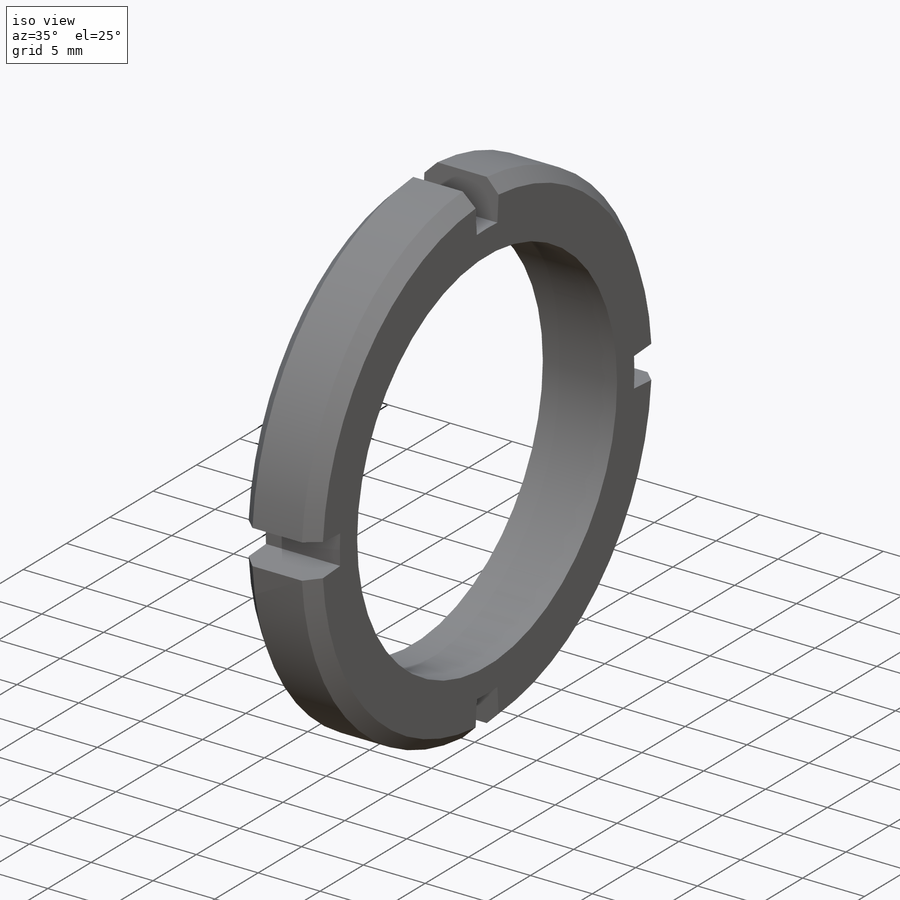
[diagram: iso view]
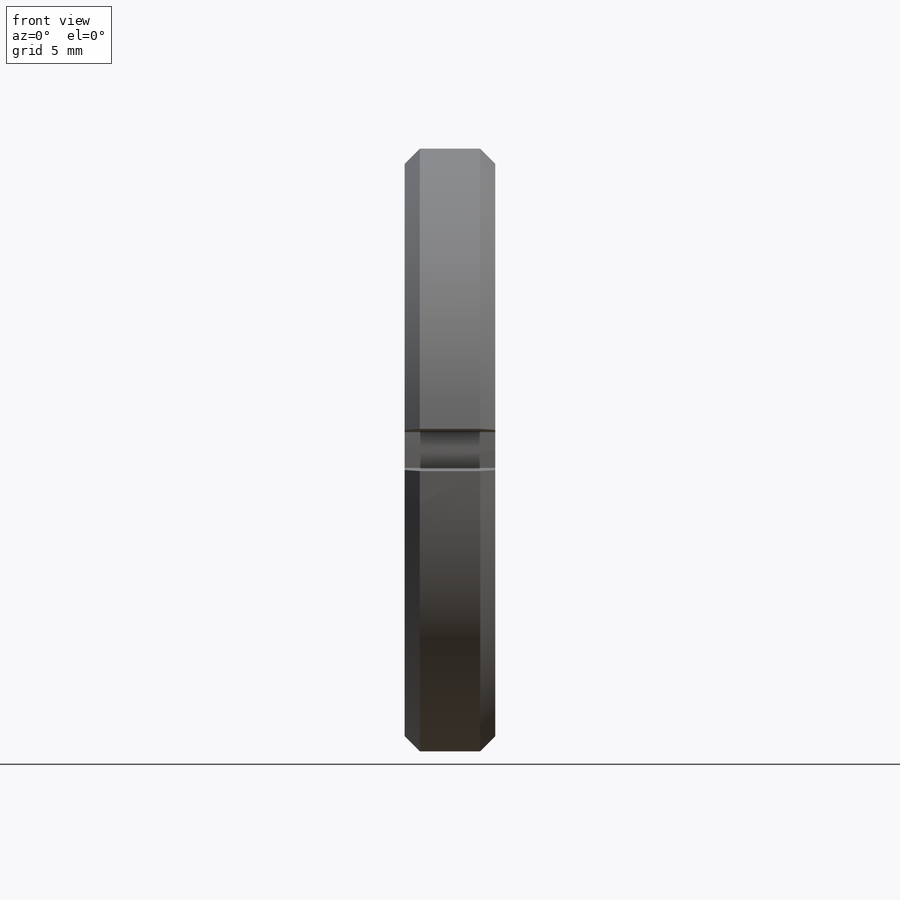
[diagram: front view]
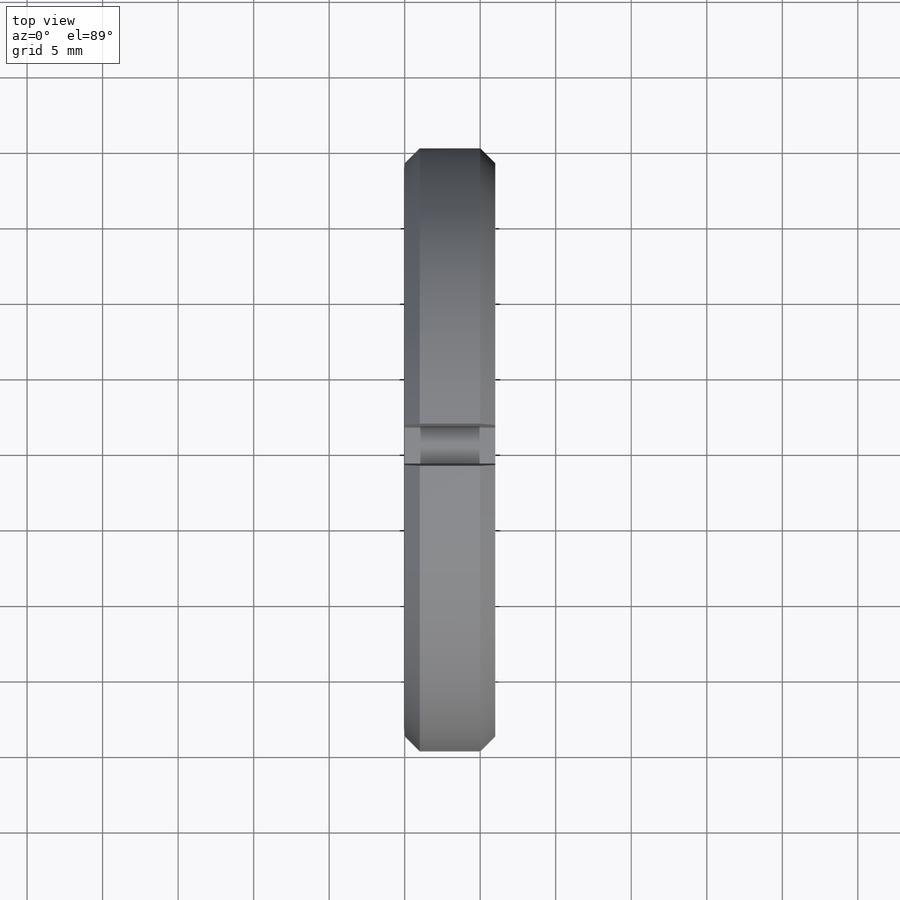
[diagram: top view]
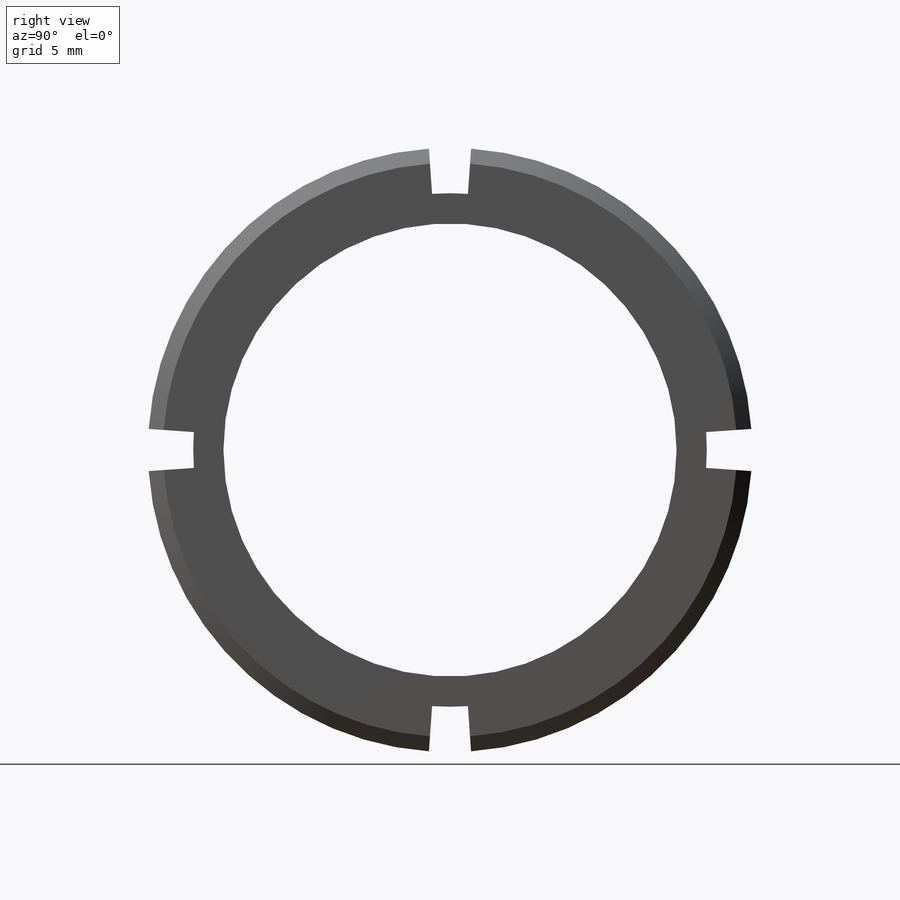
[diagram: right view]
SOLIDWORKS PART (.sldprt)
format: sldprt  version: not decoded by parser v0  size: 172,032 bytes
history: native  units: mm
features: plane x3, sketch x2, material x1, extrude x1, chamfer x1, cut_extrude x1, pattern_circular x1 (+13 scaffold rows collapsed)
feature tree (23):
  scaffold x13  (default folders/planes/origin — collapsed)
  material  "材质 <未指定>"
  plane  "前视基准面"
  plane  "上视基准面"
  plane  "右视基准面"
  sketch  "草图1"  dims[c1.D1=30.0mm c1.D3=~17.519211mm c2.D1=~18.880954mm c3.D1=4.0deg c3.D2=19.0mm c4.D2=4.0deg]
  extrude  "凸台-拉伸1"  Depth=6mm
  chamfer  "倒角1"  Distance=1mm Angle=45deg
  sketch  "草图2"  dims[c1.D1=~21.492075mm c2.D1=4.0deg c2.D2=~21.492075mm c3.D2=4.0deg]
  cut_extrude  "切除-拉伸1"  Depth=10mm
  pattern_circular  "阵列(圆周)1"  Count=4 Angle=360deg
decode coverage: 6 of 6 modeling features carry decoded parameters
note: ~ marks probable driven/reference dimensions
note: suppression state not decoded; provenance and decode notes live in map.json
